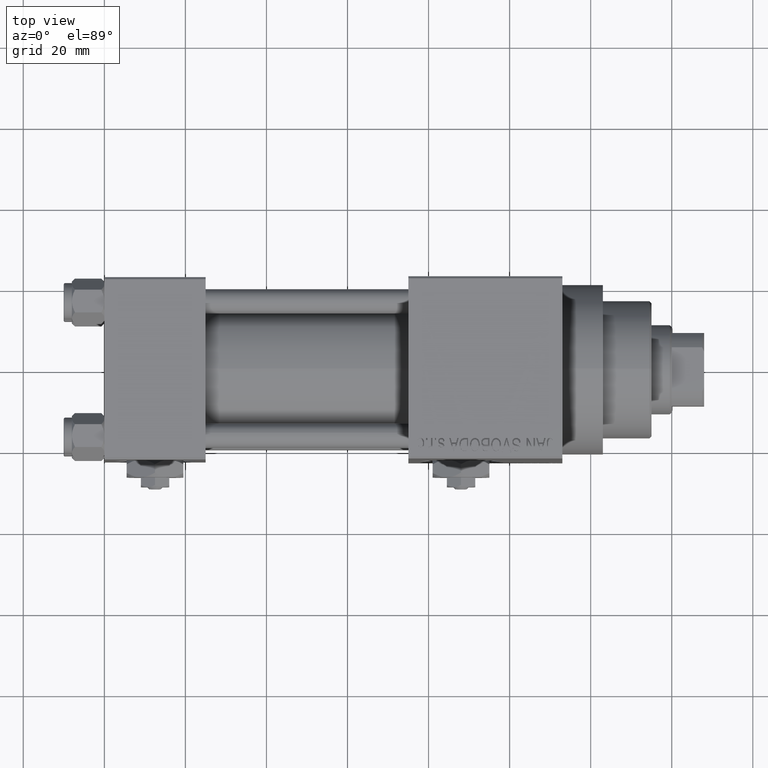
[diagram: clean part render]
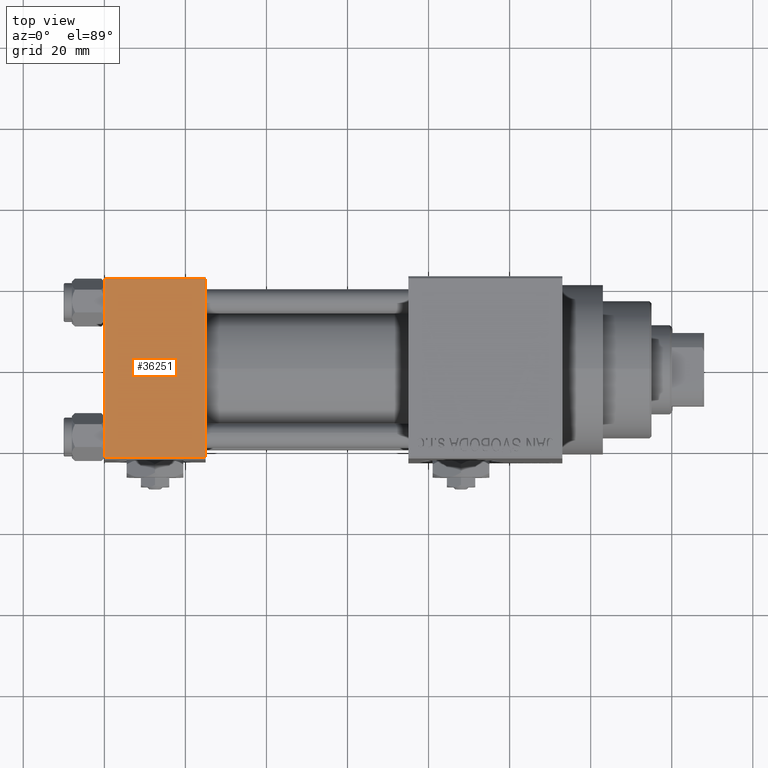
[diagram: same view with one face highlighted and labeled with its STEP entity id]
A machine part, top view. The second image highlights one B-rep face of the part: STEP entity #36251.
In plain terms, the highlighted planar face has unit normal (0, 0, -1).
Its self-contained STEP definition (entity closure, byte-faithful):
#1483 = EDGE_CURVE ( 'NONE', #19862, #28933, #12170, .T. ) ;
#2117 = VECTOR ( 'NONE', #16187, 1000.000000000000000 ) ;
#2706 = CARTESIAN_POINT ( 'NONE',  ( 0.000000000000000000, 22.50000000000000000, 22.50000000000000355 ) ) ;
#4086 = EDGE_CURVE ( 'NONE', #19862, #36901, #28560, .T. ) ;
#4435 = DIRECTION ( 'NONE',  ( 0.000000000000000000, 7.709882115452476934E-17, -1.000000000000000000 ) ) ;
#6726 = CARTESIAN_POINT ( 'NONE',  ( 0.000000000000000000, 21.99999999999999289, 22.50000000000000355 ) ) ;
#7453 = VECTOR ( 'NONE', #24599, 1000.000000000000000 ) ;
#8450 = DIRECTION ( 'NONE',  ( -1.000000000000000000, 0.000000000000000000, 0.000000000000000000 ) ) ;
#9932 = LINE ( 'NONE', #2706, #20858 ) ;
#10047 = ORIENTED_EDGE ( 'NONE', *, *, #4086, .F. ) ;
#12170 = LINE ( 'NONE', #41941, #46246 ) ;
#15325 = ORIENTED_EDGE ( 'NONE', *, *, #47254, .T. ) ;
#16187 = DIRECTION ( 'NONE',  ( 1.000000000000000000, 0.000000000000000000, 0.000000000000000000 ) ) ;
#17159 = CARTESIAN_POINT ( 'NONE',  ( 25.00000000000000000, -21.99999999999997868, 22.50000000000000000 ) ) ;
#17897 = CARTESIAN_POINT ( 'NONE',  ( 0.000000000000000000, -21.99999999999997868, 22.50000000000000000 ) ) ;
#18791 = EDGE_LOOP ( 'NONE', ( #15325, #27119, #10047, #31327 ) ) ;
#19013 = AXIS2_PLACEMENT_3D ( 'NONE', #20087, #4435, #27757 ) ;
#19862 = VERTEX_POINT ( 'NONE', #29502 ) ;
#20087 = CARTESIAN_POINT ( 'NONE',  ( 25.00000000000000000, 22.50000000000000000, 22.50000000000000355 ) ) ;
#20417 = CARTESIAN_POINT ( 'NONE',  ( 25.00000000000000000, 22.50000000000000000, 22.50000000000000355 ) ) ;
#20858 = VECTOR ( 'NONE', #48136, 1000.000000000000000 ) ;
#24599 = DIRECTION ( 'NONE',  ( 0.000000000000000000, -1.000000000000000000, -7.709882115452476934E-17 ) ) ;
#26739 = VERTEX_POINT ( 'NONE', #17897 ) ;
#27119 = ORIENTED_EDGE ( 'NONE', *, *, #29267, .T. ) ;
#27757 = DIRECTION ( 'NONE',  ( 0.000000000000000000, 1.000000000000000000, 7.709882115452476934E-17 ) ) ;
#28560 = LINE ( 'NONE', #20417, #7453 ) ;
#28933 = VERTEX_POINT ( 'NONE', #6726 ) ;
#29267 = EDGE_CURVE ( 'NONE', #26739, #36901, #38497, .T. ) ;
#29502 = CARTESIAN_POINT ( 'NONE',  ( 25.00000000000000000, 21.99999999999999289, 22.50000000000000355 ) ) ;
#30734 = FACE_OUTER_BOUND ( 'NONE', #18791, .T. ) ;
#31327 = ORIENTED_EDGE ( 'NONE', *, *, #1483, .T. ) ;
#31719 = PLANE ( 'NONE',  #19013 ) ;
#36251 = ADVANCED_FACE ( 'NONE', ( #30734 ), #31719, .F. ) ;
#36901 = VERTEX_POINT ( 'NONE', #17159 ) ;
#38497 = LINE ( 'NONE', #38752, #2117 ) ;
#38752 = CARTESIAN_POINT ( 'NONE',  ( 25.00000000000000000, -21.99999999999999289, 22.50000000000000000 ) ) ;
#41941 = CARTESIAN_POINT ( 'NONE',  ( 0.000000000000000000, 21.99999999999999289, 22.50000000000000355 ) ) ;
#46246 = VECTOR ( 'NONE', #8450, 1000.000000000000000 ) ;
#47254 = EDGE_CURVE ( 'NONE', #28933, #26739, #9932, .T. ) ;
#48136 = DIRECTION ( 'NONE',  ( 0.000000000000000000, -1.000000000000000000, -7.709882115452476934E-17 ) ) ;